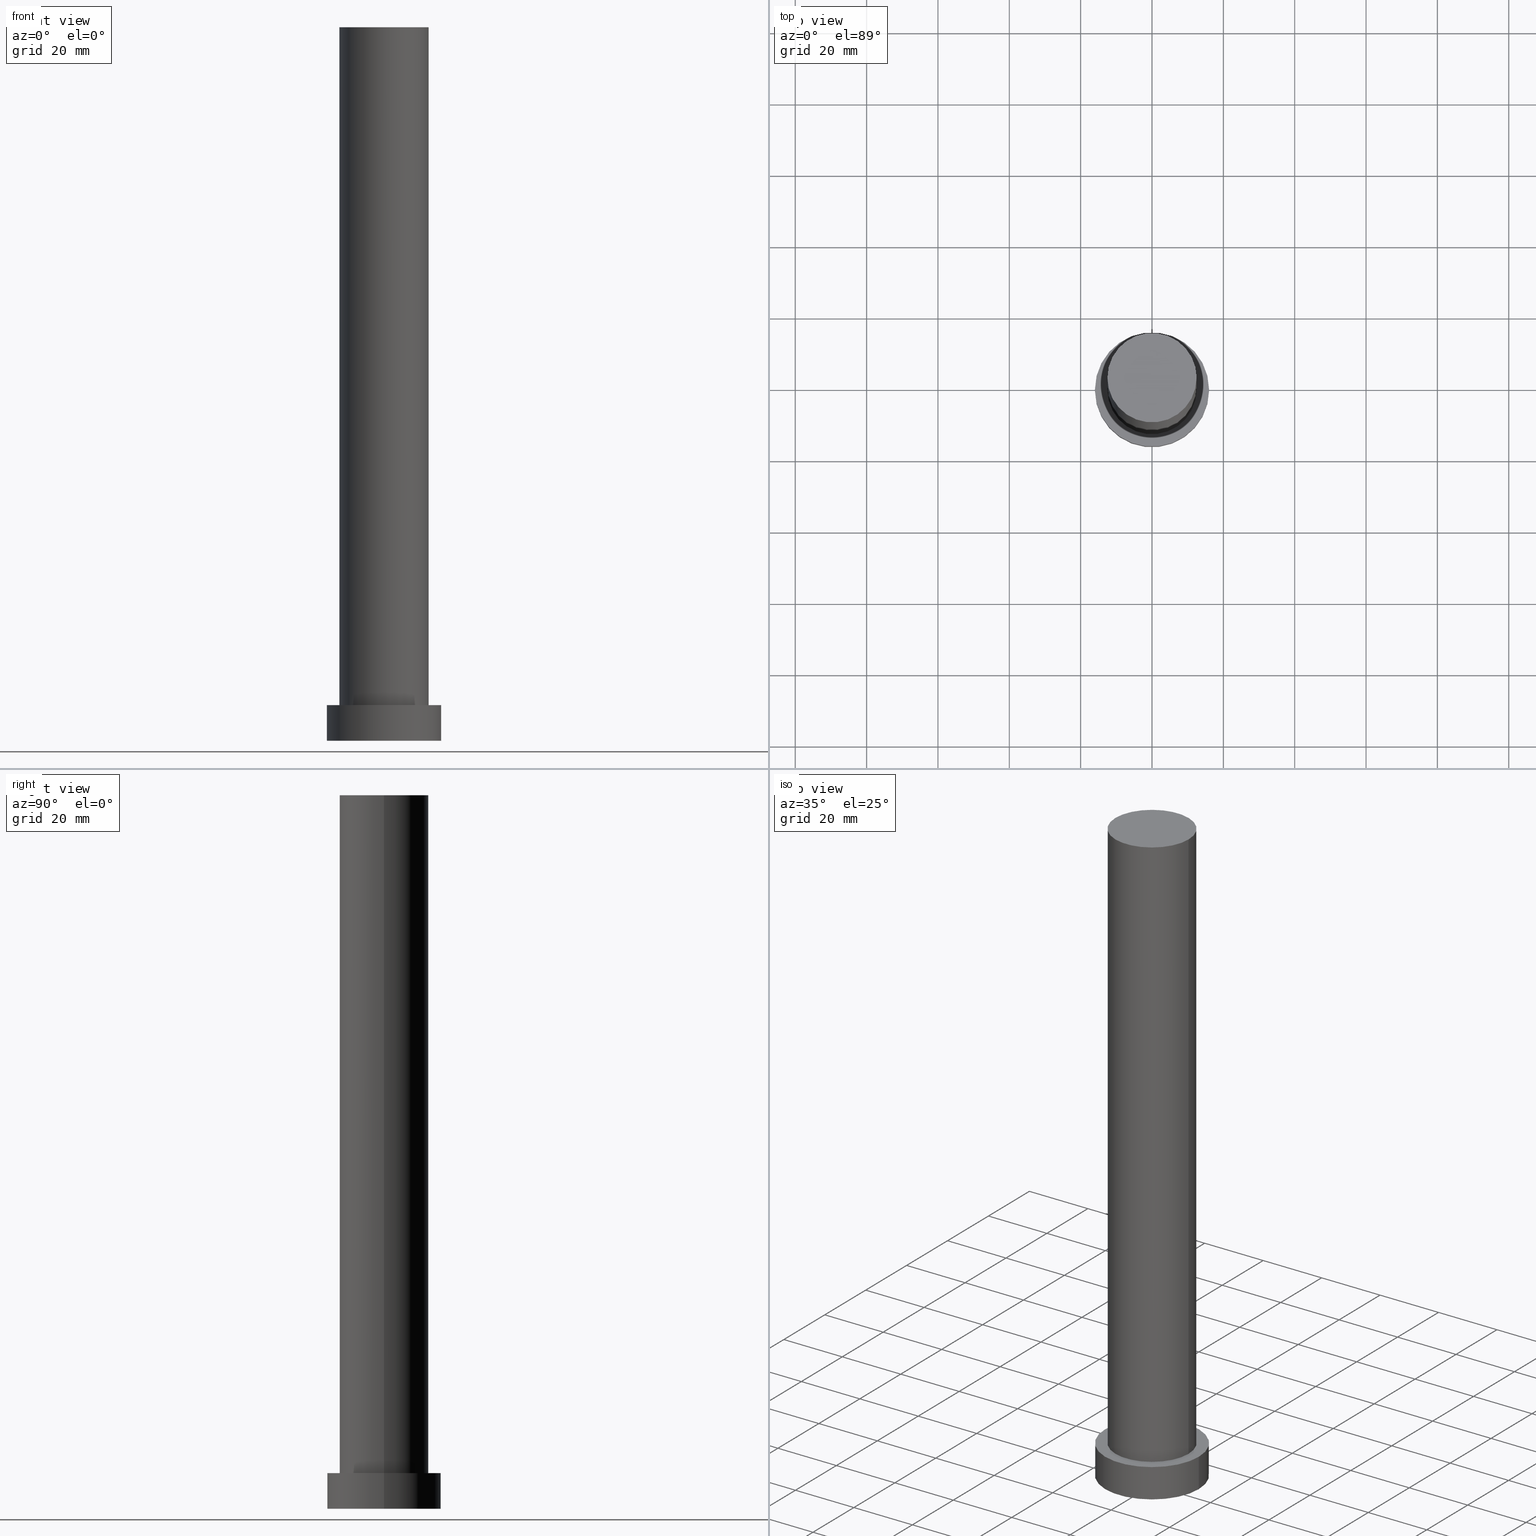
[diagram: canonical four-view strip — front | top / right | iso, engineering-drawing reading convention]
A machine part, canonical four-view strip (front | top / right | iso — engineering-drawing reading convention). The complete STEP part file that produces these views, byte-faithful:
ISO-10303-21;
HEADER;
FILE_DESCRIPTION (( 'STEP AP203' ),
    '1' );
FILE_NAME ('796b.STEP',
    '2026-02-06T12:35:01',
    ( '' ),
    ( '' ),
    'SwSTEP 2.0',
    'SolidWorks 2019',
    '' );
FILE_SCHEMA (( 'CONFIG_CONTROL_DESIGN' ));
ENDSEC;

DATA;
#1 = AXIS2_PLACEMENT_3D ( 'NONE', #153, #230, #193 ) ;
#2 = UNCERTAINTY_MEASURE_WITH_UNIT (LENGTH_MEASURE( 1.000000000000000082E-05 ), #192, 'distance_accuracy_value', 'NONE');
#3 = CALENDAR_DATE ( 2026, 6, 2 ) ;
#4 = ORIENTED_EDGE ( 'NONE', *, *, #143, .F. ) ;
#5 = AXIS2_PLACEMENT_3D ( 'NONE', #249, #40, #91 ) ;
#6 = CYLINDRICAL_SURFACE ( 'NONE', #101, 16.00000000000000000 ) ;
#7 = LINE ( 'NONE', #62, #203 ) ;
#8 = CARTESIAN_POINT ( 'NONE',  ( -12.50000000000000000, 0.000000000000000000, 200.0000000000000000 ) ) ;
#9 = PERSON_AND_ORGANIZATION ( #102, #70 ) ;
#10 = DIRECTION ( 'NONE',  ( 1.000000000000000000, 0.000000000000000000, 0.000000000000000000 ) ) ;
#11 = PERSON_AND_ORGANIZATION ( #102, #70 ) ;
#12 = AXIS2_PLACEMENT_3D ( 'NONE', #206, #109, #10 ) ;
#13 = CARTESIAN_POINT ( 'NONE',  ( 0.000000000000000000, 0.000000000000000000, 10.00000000000000000 ) ) ;
#14 = LINE ( 'NONE', #8, #84 ) ;
#15 = CARTESIAN_POINT ( 'NONE',  ( 12.50000000000000000, 1.530808498934191521E-15, 200.0000000000000000 ) ) ;
#16 = CARTESIAN_POINT ( 'NONE',  ( -16.00000000000000000, 0.000000000000000000, 10.00000000000000000 ) ) ;
#17 = CALENDAR_DATE ( 2026, 6, 2 ) ;
#18 = DATE_AND_TIME ( #17, #59 ) ;
#19 = APPROVAL_PERSON_ORGANIZATION ( #255, #90, #43 ) ;
#20 = VERTEX_POINT ( 'NONE', #179 ) ;
#21 = FACE_OUTER_BOUND ( 'NONE', #33, .T. ) ;
#22 = ADVANCED_FACE ( 'NONE', ( #21 ), #217, .T. ) ;
#23 = APPROVAL_ROLE ( '' ) ;
#24 = VECTOR ( 'NONE', #189, 1000.000000000000000 ) ;
#25 = ORIENTED_EDGE ( 'NONE', *, *, #121, .T. ) ;
#26 = DIRECTION ( 'NONE',  ( 1.000000000000000000, 0.000000000000000000, -0.000000000000000000 ) ) ;
#27 = ORIENTED_EDGE ( 'NONE', *, *, #36, .F. ) ;
#28 = PRODUCT_DEFINITION ( 'NEZN�M�', '', #77, #199 ) ;
#29 = CIRCLE ( 'NONE', #149, 12.50000000000000000 ) ;
#30 = CARTESIAN_POINT ( 'NONE',  ( -16.00000000000000000, 0.000000000000000000, 0.000000000000000000 ) ) ;
#31 = ORIENTED_EDGE ( 'NONE', *, *, #36, .T. ) ;
#32 = DIRECTION ( 'NONE',  ( 1.000000000000000000, 0.000000000000000000, 0.000000000000000000 ) ) ;
#33 = EDGE_LOOP ( 'NONE', ( #160, #126, #241, #50 ) ) ;
#34 = CYLINDRICAL_SURFACE ( 'NONE', #235, 12.50000000000000000 ) ;
#35 = PERSON_AND_ORGANIZATION ( #102, #70 ) ;
#36 = EDGE_CURVE ( 'NONE', #146, #20, #41, .T. ) ;
#37 = CARTESIAN_POINT ( 'NONE',  ( 0.000000000000000000, 0.000000000000000000, 200.0000000000000000 ) ) ;
#38 = LOCAL_TIME ( 13, 35, 1.000000000000000000, #183 ) ;
#39 = APPLICATION_CONTEXT ( 'configuration controlled 3d designs of mechanical parts and assemblies' ) ;
#40 = DIRECTION ( 'NONE',  ( 0.000000000000000000, 0.000000000000000000, 1.000000000000000000 ) ) ;
#41 = LINE ( 'NONE', #252, #247 ) ;
#42 =( NAMED_UNIT ( * ) PLANE_ANGLE_UNIT ( ) SI_UNIT ( $, .RADIAN. ) );
#43 = APPROVAL_ROLE ( '' ) ;
#44 = PRODUCT_DEFINITION_SHAPE ( 'NONE', 'NONE',  #28 ) ;
#45 = DIRECTION ( 'NONE',  ( -1.000000000000000000, 0.000000000000000000, 0.000000000000000000 ) ) ;
#46 = ORIENTED_EDGE ( 'NONE', *, *, #114, .T. ) ;
#47 = ORIENTED_EDGE ( 'NONE', *, *, #177, .T. ) ;
#48 = COORDINATED_UNIVERSAL_TIME_OFFSET ( 1, 0, .AHEAD. ) ;
#49 = CARTESIAN_POINT ( 'NONE',  ( 0.000000000000000000, 0.000000000000000000, 10.00000000000000000 ) ) ;
#50 = ORIENTED_EDGE ( 'NONE', *, *, #140, .F. ) ;
#51 = DIRECTION ( 'NONE',  ( 1.000000000000000000, 0.000000000000000000, 0.000000000000000000 ) ) ;
#52 = LINE ( 'NONE', #16, #24 ) ;
#53 = PLANE ( 'NONE',  #65 ) ;
#54 = CYLINDRICAL_SURFACE ( 'NONE', #182, 12.50000000000000000 ) ;
#55 = AXIS2_PLACEMENT_3D ( 'NONE', #207, #163, #32 ) ;
#56 = ORIENTED_EDGE ( 'NONE', *, *, #140, .T. ) ;
#57 = CC_DESIGN_PERSON_AND_ORGANIZATION_ASSIGNMENT ( #137, #98, ( #77 ) ) ;
#58 = APPROVAL_STATUS ( 'not_yet_approved' ) ;
#59 = LOCAL_TIME ( 13, 35, 1.000000000000000000, #194 ) ;
#60 = APPLICATION_PROTOCOL_DEFINITION ( 'international standard', 'config_control_design', 1994, #39 ) ;
#61 = SECURITY_CLASSIFICATION ( '', '', #198 ) ;
#62 = CARTESIAN_POINT ( 'NONE',  ( 16.00000000000000000, 1.959434878635765131E-15, 10.00000000000000000 ) ) ;
#63 = VERTEX_POINT ( 'NONE', #213 ) ;
#64 = DIRECTION ( 'NONE',  ( -0.000000000000000000, -0.000000000000000000, -1.000000000000000000 ) ) ;
#65 = AXIS2_PLACEMENT_3D ( 'NONE', #245, #134, #26 ) ;
#66 = DATE_AND_TIME ( #246, #88 ) ;
#67 = COORDINATED_UNIVERSAL_TIME_OFFSET ( 1, 0, .AHEAD. ) ;
#68 = DIRECTION ( 'NONE',  ( 0.000000000000000000, 0.000000000000000000, 1.000000000000000000 ) ) ;
#69 = CARTESIAN_POINT ( 'NONE',  ( 0.000000000000000000, 0.000000000000000000, 200.0000000000000000 ) ) ;
#70 = ORGANIZATION ( 'NEUR�EN�', 'NEUR�EN�', '' ) ;
#71 = EDGE_CURVE ( 'NONE', #95, #223, #196, .T. ) ;
#72 = PLANE ( 'NONE',  #157 ) ;
#73 = CARTESIAN_POINT ( 'NONE',  ( -12.50000000000000000, 0.000000000000000000, 10.00000000000000000 ) ) ;
#74 = CC_DESIGN_PERSON_AND_ORGANIZATION_ASSIGNMENT ( #144, #224, ( #77 ) ) ;
#75 = DIRECTION ( 'NONE',  ( -0.000000000000000000, -0.000000000000000000, -1.000000000000000000 ) ) ;
#76 = DATE_TIME_ROLE ( 'classification_date' ) ;
#77 = PRODUCT_DEFINITION_FORMATION_WITH_SPECIFIED_SOURCE ( 'LIBOVOLN�', '', #116, .NOT_KNOWN. ) ;
#78 = APPROVAL_DATE_TIME ( #18, #90 ) ;
#79 = ORIENTED_EDGE ( 'NONE', *, *, #119, .T. ) ;
#80 = ORIENTED_EDGE ( 'NONE', *, *, #190, .T. ) ;
#81 = PERSON_AND_ORGANIZATION ( #102, #70 ) ;
#82 = AXIS2_PLACEMENT_3D ( 'NONE', #115, #154, #92 ) ;
#83 = DATE_TIME_ROLE ( 'creation_date' ) ;
#84 = VECTOR ( 'NONE', #86, 1000.000000000000000 ) ;
#85 = FACE_OUTER_BOUND ( 'NONE', #117, .T. ) ;
#86 = DIRECTION ( 'NONE',  ( -0.000000000000000000, -0.000000000000000000, -1.000000000000000000 ) ) ;
#87 = DIRECTION ( 'NONE',  ( -1.000000000000000000, 0.000000000000000000, 0.000000000000000000 ) ) ;
#88 = LOCAL_TIME ( 13, 35, 1.000000000000000000, #48 ) ;
#89 = CARTESIAN_POINT ( 'NONE',  ( 16.00000000000000000, 1.959434878635765131E-15, 0.000000000000000000 ) ) ;
#90 = APPROVAL ( #58, 'NEUR�EN�' ) ;
#91 = DIRECTION ( 'NONE',  ( 1.000000000000000000, 0.000000000000000000, 0.000000000000000000 ) ) ;
#92 = DIRECTION ( 'NONE',  ( 1.000000000000000000, 0.000000000000000000, 0.000000000000000000 ) ) ;
#93 = CC_DESIGN_DATE_AND_TIME_ASSIGNMENT ( #229, #83, ( #28 ) ) ;
#94 = CARTESIAN_POINT ( 'NONE',  ( 0.000000000000000000, 0.000000000000000000, 200.0000000000000000 ) ) ;
#95 = VERTEX_POINT ( 'NONE', #130 ) ;
#96 =( GEOMETRIC_REPRESENTATION_CONTEXT ( 3 ) GLOBAL_UNCERTAINTY_ASSIGNED_CONTEXT ( ( #2 ) ) GLOBAL_UNIT_ASSIGNED_CONTEXT ( ( #192, #42, #100 ) ) REPRESENTATION_CONTEXT ( 'NONE', 'WORKASPACE' ) );
#97 = ORIENTED_EDGE ( 'NONE', *, *, #151, .F. ) ;
#98 = PERSON_AND_ORGANIZATION_ROLE ( 'design_supplier' ) ;
#99 = CARTESIAN_POINT ( 'NONE',  ( 0.000000000000000000, 0.000000000000000000, 10.00000000000000000 ) ) ;
#100 =( NAMED_UNIT ( * ) SI_UNIT ( $, .STERADIAN. ) SOLID_ANGLE_UNIT ( ) );
#101 = AXIS2_PLACEMENT_3D ( 'NONE', #49, #64, #87 ) ;
#102 = PERSON ( 'NEUR�EN�', 'NEUR�EN�', 'NEUR�EN�', ('NEUR�EN�'), ('NEUR�EN�'), ('NEUR�EN�') ) ;
#103 = CC_DESIGN_PERSON_AND_ORGANIZATION_ASSIGNMENT ( #11, #248, ( #28 ) ) ;
#104 = EDGE_LOOP ( 'NONE', ( #107, #201 ) ) ;
#105 = ORIENTED_EDGE ( 'NONE', *, *, #71, .T. ) ;
#106 = CC_DESIGN_APPROVAL ( #168, ( #77 ) ) ;
#107 = ORIENTED_EDGE ( 'NONE', *, *, #143, .T. ) ;
#108 = MECHANICAL_CONTEXT ( 'NONE', #180, 'mechanical' ) ;
#109 = DIRECTION ( 'NONE',  ( 0.000000000000000000, 0.000000000000000000, 1.000000000000000000 ) ) ;
#110 = CLOSED_SHELL ( 'NONE', ( #159, #22, #215, #237, #200, #225, #240 ) ) ;
#111 = CC_DESIGN_PERSON_AND_ORGANIZATION_ASSIGNMENT ( #81, #216, ( #61 ) ) ;
#112 = FACE_OUTER_BOUND ( 'NONE', #104, .T. ) ;
#113 = DIRECTION ( 'NONE',  ( 1.000000000000000000, 0.000000000000000000, -0.000000000000000000 ) ) ;
#114 = EDGE_CURVE ( 'NONE', #244, #20, #191, .T. ) ;
#115 = CARTESIAN_POINT ( 'NONE',  ( 0.000000000000000000, 0.000000000000000000, 10.00000000000000000 ) ) ;
#116 = PRODUCT ( '796b', '796b', '', ( #108 ) ) ;
#117 = EDGE_LOOP ( 'NONE', ( #27, #4, #80, #46 ) ) ;
#118 = CIRCLE ( 'NONE', #12, 12.50000000000000000 ) ;
#119 = EDGE_CURVE ( 'NONE', #223, #95, #228, .T. ) ;
#120 = EDGE_LOOP ( 'NONE', ( #158, #97 ) ) ;
#121 = EDGE_CURVE ( 'NONE', #20, #244, #164, .T. ) ;
#122 = APPROVAL_DATE_TIME ( #66, #148 ) ;
#123 = LOCAL_TIME ( 13, 35, 1.000000000000000000, #67 ) ;
#124 = ORIENTED_EDGE ( 'NONE', *, *, #190, .F. ) ;
#125 = ORIENTED_EDGE ( 'NONE', *, *, #232, .F. ) ;
#126 = ORIENTED_EDGE ( 'NONE', *, *, #161, .T. ) ;
#127 = CC_DESIGN_SECURITY_CLASSIFICATION ( #61, ( #77 ) ) ;
#128 = CARTESIAN_POINT ( 'NONE',  ( -16.00000000000000000, 0.000000000000000000, 10.00000000000000000 ) ) ;
#129 = EDGE_LOOP ( 'NONE', ( #184, #197, #56, #47 ) ) ;
#130 = CARTESIAN_POINT ( 'NONE',  ( 16.00000000000000000, 1.959434878635765131E-15, 10.00000000000000000 ) ) ;
#131 = PERSON_AND_ORGANIZATION ( #102, #70 ) ;
#132 = PRODUCT_RELATED_PRODUCT_CATEGORY ( 'detail', '', ( #116 ) ) ;
#133 = DIRECTION ( 'NONE',  ( 0.000000000000000000, 0.000000000000000000, 1.000000000000000000 ) ) ;
#134 = DIRECTION ( 'NONE',  ( 0.000000000000000000, 0.000000000000000000, 1.000000000000000000 ) ) ;
#135 = DIRECTION ( 'NONE',  ( -0.000000000000000000, -0.000000000000000000, -1.000000000000000000 ) ) ;
#136 = FACE_OUTER_BOUND ( 'NONE', #165, .T. ) ;
#137 = PERSON_AND_ORGANIZATION ( #102, #70 ) ;
#138 = DIRECTION ( 'NONE',  ( -0.000000000000000000, -0.000000000000000000, -1.000000000000000000 ) ) ;
#139 = DATE_AND_TIME ( #218, #210 ) ;
#140 = EDGE_CURVE ( 'NONE', #223, #204, #52, .T. ) ;
#141 = ORIENTED_EDGE ( 'NONE', *, *, #114, .F. ) ;
#142 = CIRCLE ( 'NONE', #253, 16.00000000000000000 ) ;
#143 = EDGE_CURVE ( 'NONE', #63, #146, #29, .T. ) ;
#144 = PERSON_AND_ORGANIZATION ( #102, #70 ) ;
#145 = APPROVAL_PERSON_ORGANIZATION ( #35, #148, #167 ) ;
#146 = VERTEX_POINT ( 'NONE', #15 ) ;
#147 = DIRECTION ( 'NONE',  ( -0.000000000000000000, -0.000000000000000000, -1.000000000000000000 ) ) ;
#148 = APPROVAL ( #186, 'NEUR�EN�' ) ;
#149 = AXIS2_PLACEMENT_3D ( 'NONE', #94, #133, #234 ) ;
#150 = DIRECTION ( 'NONE',  ( -1.000000000000000000, 0.000000000000000000, 0.000000000000000000 ) ) ;
#151 = EDGE_CURVE ( 'NONE', #236, #204, #233, .T. ) ;
#152 = FACE_OUTER_BOUND ( 'NONE', #129, .T. ) ;
#153 = CARTESIAN_POINT ( 'NONE',  ( 0.000000000000000000, 0.000000000000000000, 10.00000000000000000 ) ) ;
#154 = DIRECTION ( 'NONE',  ( 0.000000000000000000, 0.000000000000000000, 1.000000000000000000 ) ) ;
#155 = DIRECTION ( 'NONE',  ( 0.000000000000000000, 0.000000000000000000, 1.000000000000000000 ) ) ;
#156 = DIRECTION ( 'NONE',  ( 0.000000000000000000, 0.000000000000000000, 1.000000000000000000 ) ) ;
#157 = AXIS2_PLACEMENT_3D ( 'NONE', #69, #155, #113 ) ;
#158 = ORIENTED_EDGE ( 'NONE', *, *, #177, .F. ) ;
#159 = ADVANCED_FACE ( 'NONE', ( #208 ), #54, .T. ) ;
#160 = ORIENTED_EDGE ( 'NONE', *, *, #71, .F. ) ;
#161 = EDGE_CURVE ( 'NONE', #95, #236, #7, .T. ) ;
#162 = DATE_AND_TIME ( #3, #38 ) ;
#163 = DIRECTION ( 'NONE',  ( 0.000000000000000000, 0.000000000000000000, 1.000000000000000000 ) ) ;
#164 = CIRCLE ( 'NONE', #254, 12.50000000000000000 ) ;
#165 = EDGE_LOOP ( 'NONE', ( #79, #105 ) ) ;
#166 = CARTESIAN_POINT ( 'NONE',  ( 0.000000000000000000, 0.000000000000000000, 200.0000000000000000 ) ) ;
#167 = APPROVAL_ROLE ( '' ) ;
#168 = APPROVAL ( #209, 'NEUR�EN�' ) ;
#169 = AXIS2_PLACEMENT_3D ( 'NONE', #212, #211, #176 ) ;
#170 = FACE_BOUND ( 'NONE', #178, .T. ) ;
#171 = CARTESIAN_POINT ( 'NONE',  ( 0.000000000000000000, 0.000000000000000000, 0.000000000000000000 ) ) ;
#172 = DIRECTION ( 'NONE',  ( 1.000000000000000000, 0.000000000000000000, -0.000000000000000000 ) ) ;
#173 = APPROVAL_PERSON_ORGANIZATION ( #131, #168, #23 ) ;
#174 = DIRECTION ( 'NONE',  ( 0.000000000000000000, 0.000000000000000000, 1.000000000000000000 ) ) ;
#175 = DIRECTION ( 'NONE',  ( 1.000000000000000000, 0.000000000000000000, 0.000000000000000000 ) ) ;
#176 = DIRECTION ( 'NONE',  ( 1.000000000000000000, 0.000000000000000000, 0.000000000000000000 ) ) ;
#177 = EDGE_CURVE ( 'NONE', #204, #236, #142, .T. ) ;
#178 = EDGE_LOOP ( 'NONE', ( #141, #227 ) ) ;
#179 = CARTESIAN_POINT ( 'NONE',  ( 12.50000000000000000, 1.530808498934191521E-15, 10.00000000000000000 ) ) ;
#180 = APPLICATION_CONTEXT ( 'configuration controlled 3d designs of mechanical parts and assemblies' ) ;
#181 = COORDINATED_UNIVERSAL_TIME_OFFSET ( 1, 0, .AHEAD. ) ;
#182 = AXIS2_PLACEMENT_3D ( 'NONE', #37, #135, #202 ) ;
#183 = COORDINATED_UNIVERSAL_TIME_OFFSET ( 1, 0, .AHEAD. ) ;
#184 = ORIENTED_EDGE ( 'NONE', *, *, #161, .F. ) ;
#185 = CC_DESIGN_DATE_AND_TIME_ASSIGNMENT ( #139, #76, ( #61 ) ) ;
#186 = APPROVAL_STATUS ( 'not_yet_approved' ) ;
#187 = AXIS2_PLACEMENT_3D ( 'NONE', #214, #156, #172 ) ;
#188 = CALENDAR_DATE ( 2026, 6, 2 ) ;
#189 = DIRECTION ( 'NONE',  ( -0.000000000000000000, -0.000000000000000000, -1.000000000000000000 ) ) ;
#190 = EDGE_CURVE ( 'NONE', #63, #244, #14, .T. ) ;
#191 = CIRCLE ( 'NONE', #82, 12.50000000000000000 ) ;
#192 =( LENGTH_UNIT ( ) NAMED_UNIT ( * ) SI_UNIT ( .MILLI., .METRE. ) );
#193 = DIRECTION ( 'NONE',  ( 1.000000000000000000, 0.000000000000000000, 0.000000000000000000 ) ) ;
#194 = COORDINATED_UNIVERSAL_TIME_OFFSET ( 1, 0, .AHEAD. ) ;
#195 = CC_DESIGN_PERSON_AND_ORGANIZATION_ASSIGNMENT ( #9, #226, ( #116 ) ) ;
#196 = CIRCLE ( 'NONE', #5, 16.00000000000000000 ) ;
#197 = ORIENTED_EDGE ( 'NONE', *, *, #119, .F. ) ;
#198 = SECURITY_CLASSIFICATION_LEVEL ( 'unclassified' ) ;
#199 = DESIGN_CONTEXT ( 'detailed design', #39, 'design' ) ;
#200 = ADVANCED_FACE ( 'NONE', ( #231 ), #53, .F. ) ;
#201 = ORIENTED_EDGE ( 'NONE', *, *, #232, .T. ) ;
#202 = DIRECTION ( 'NONE',  ( -1.000000000000000000, 0.000000000000000000, 0.000000000000000000 ) ) ;
#203 = VECTOR ( 'NONE', #243, 1000.000000000000000 ) ;
#204 = VERTEX_POINT ( 'NONE', #30 ) ;
#205 = ADVANCED_BREP_SHAPE_REPRESENTATION ( '796b', ( #219, #55 ), #96 ) ;
#206 = CARTESIAN_POINT ( 'NONE',  ( 0.000000000000000000, 0.000000000000000000, 200.0000000000000000 ) ) ;
#207 = CARTESIAN_POINT ( 'NONE',  ( 0.000000000000000000, 0.000000000000000000, 0.000000000000000000 ) ) ;
#208 = FACE_OUTER_BOUND ( 'NONE', #221, .T. ) ;
#209 = APPROVAL_STATUS ( 'not_yet_approved' ) ;
#210 = LOCAL_TIME ( 13, 35, 1.000000000000000000, #181 ) ;
#211 = DIRECTION ( 'NONE',  ( 0.000000000000000000, 0.000000000000000000, 1.000000000000000000 ) ) ;
#212 = CARTESIAN_POINT ( 'NONE',  ( 0.000000000000000000, 0.000000000000000000, 0.000000000000000000 ) ) ;
#213 = CARTESIAN_POINT ( 'NONE',  ( -12.50000000000000000, 0.000000000000000000, 200.0000000000000000 ) ) ;
#214 = CARTESIAN_POINT ( 'NONE',  ( 0.000000000000000000, 0.000000000000000000, 10.00000000000000000 ) ) ;
#215 = ADVANCED_FACE ( 'NONE', ( #152 ), #6, .T. ) ;
#216 = PERSON_AND_ORGANIZATION_ROLE ( 'classification_officer' ) ;
#217 = CYLINDRICAL_SURFACE ( 'NONE', #250, 16.00000000000000000 ) ;
#218 = CALENDAR_DATE ( 2026, 6, 2 ) ;
#219 = MANIFOLD_SOLID_BREP ( 'P�idat vysunut�m3', #110 ) ;
#220 = SHAPE_DEFINITION_REPRESENTATION ( #44, #205 ) ;
#221 = EDGE_LOOP ( 'NONE', ( #125, #31, #25, #124 ) ) ;
#222 = CC_DESIGN_APPROVAL ( #148, ( #28 ) ) ;
#223 = VERTEX_POINT ( 'NONE', #128 ) ;
#224 = PERSON_AND_ORGANIZATION_ROLE ( 'creator' ) ;
#225 = ADVANCED_FACE ( 'NONE', ( #85 ), #34, .T. ) ;
#226 = PERSON_AND_ORGANIZATION_ROLE ( 'design_owner' ) ;
#227 = ORIENTED_EDGE ( 'NONE', *, *, #121, .F. ) ;
#228 = CIRCLE ( 'NONE', #1, 16.00000000000000000 ) ;
#229 = DATE_AND_TIME ( #188, #123 ) ;
#230 = DIRECTION ( 'NONE',  ( 0.000000000000000000, 0.000000000000000000, 1.000000000000000000 ) ) ;
#231 = FACE_OUTER_BOUND ( 'NONE', #120, .T. ) ;
#232 = EDGE_CURVE ( 'NONE', #146, #63, #118, .T. ) ;
#233 = CIRCLE ( 'NONE', #169, 16.00000000000000000 ) ;
#234 = DIRECTION ( 'NONE',  ( 1.000000000000000000, 0.000000000000000000, 0.000000000000000000 ) ) ;
#235 = AXIS2_PLACEMENT_3D ( 'NONE', #166, #147, #150 ) ;
#236 = VERTEX_POINT ( 'NONE', #89 ) ;
#237 = ADVANCED_FACE ( 'NONE', ( #170, #136 ), #251, .T. ) ;
#238 = CC_DESIGN_APPROVAL ( #90, ( #61 ) ) ;
#239 = APPROVAL_DATE_TIME ( #162, #168 ) ;
#240 = ADVANCED_FACE ( 'NONE', ( #112 ), #72, .T. ) ;
#241 = ORIENTED_EDGE ( 'NONE', *, *, #151, .T. ) ;
#242 = APPLICATION_PROTOCOL_DEFINITION ( 'international standard', 'config_control_design', 1994, #180 ) ;
#243 = DIRECTION ( 'NONE',  ( -0.000000000000000000, -0.000000000000000000, -1.000000000000000000 ) ) ;
#244 = VERTEX_POINT ( 'NONE', #73 ) ;
#245 = CARTESIAN_POINT ( 'NONE',  ( 0.000000000000000000, 0.000000000000000000, 0.000000000000000000 ) ) ;
#246 = CALENDAR_DATE ( 2026, 6, 2 ) ;
#247 = VECTOR ( 'NONE', #75, 1000.000000000000000 ) ;
#248 = PERSON_AND_ORGANIZATION_ROLE ( 'creator' ) ;
#249 = CARTESIAN_POINT ( 'NONE',  ( 0.000000000000000000, 0.000000000000000000, 10.00000000000000000 ) ) ;
#250 = AXIS2_PLACEMENT_3D ( 'NONE', #99, #138, #45 ) ;
#251 = PLANE ( 'NONE',  #187 ) ;
#252 = CARTESIAN_POINT ( 'NONE',  ( 12.50000000000000000, 1.530808498934191521E-15, 200.0000000000000000 ) ) ;
#253 = AXIS2_PLACEMENT_3D ( 'NONE', #171, #68, #51 ) ;
#254 = AXIS2_PLACEMENT_3D ( 'NONE', #13, #174, #175 ) ;
#255 = PERSON_AND_ORGANIZATION ( #102, #70 ) ;
ENDSEC;
END-ISO-10303-21;
